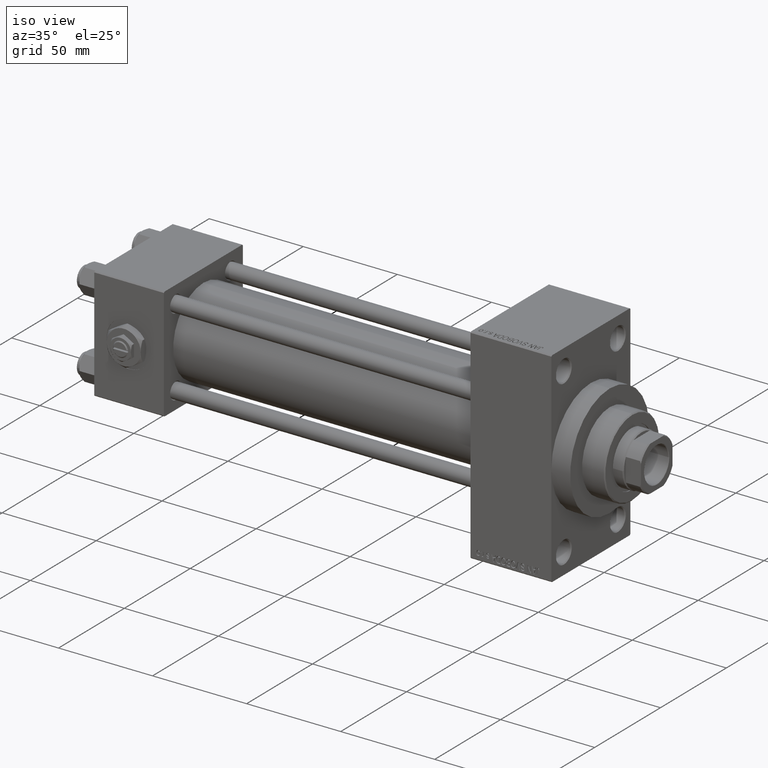
[diagram: clean part render]
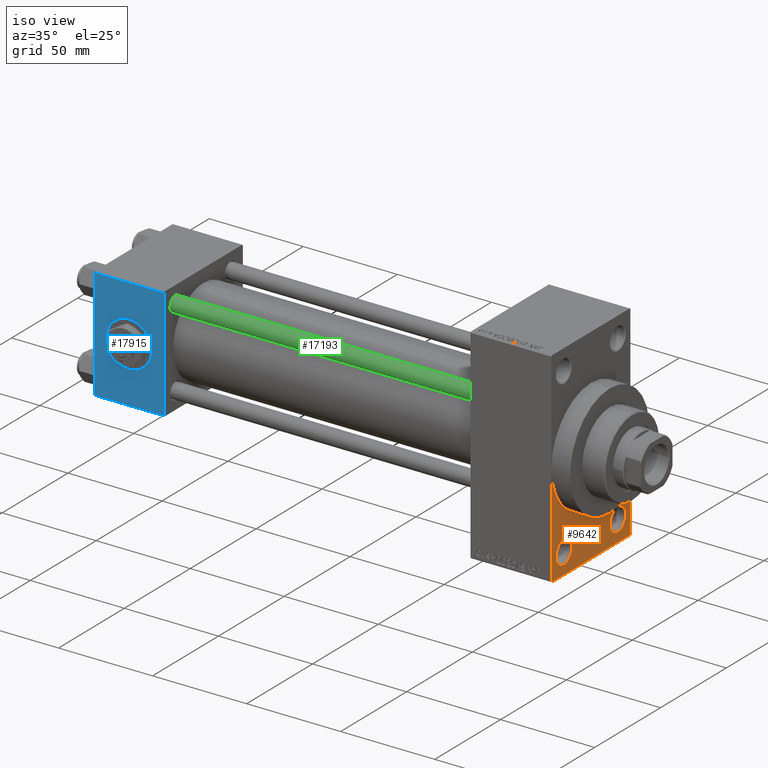
[diagram: same view with three faces highlighted in distinct colors, each labeled with its STEP entity id]
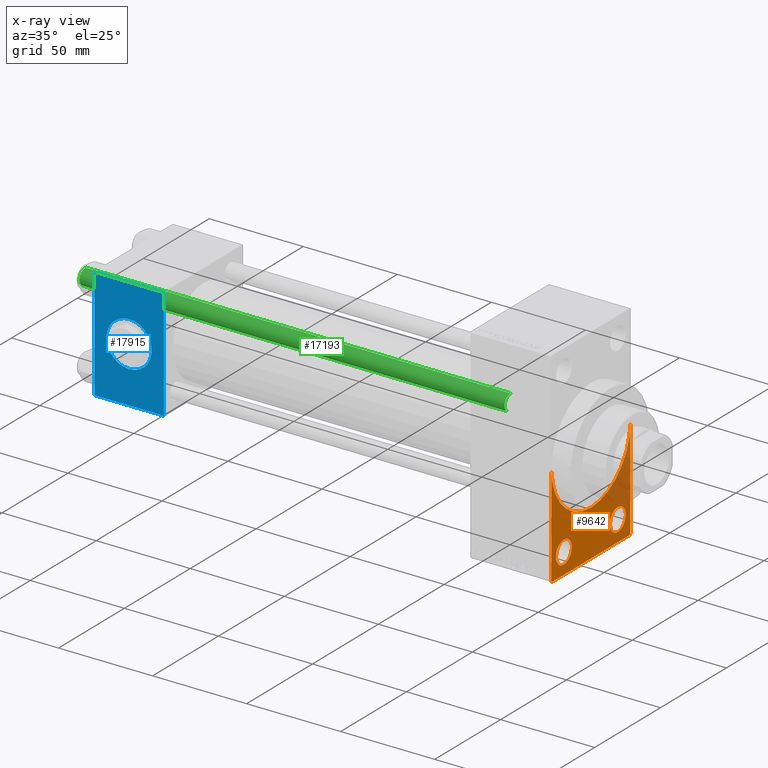
[diagram: x-ray of the same camera — body ghosted, the three highlighted faces saturated]
A machine part, iso view with three faces highlighted in distinct colors.
The next image is the same camera in x-ray (body ghosted, the three faces saturated) — at least one of them is partly hidden behind the body in this view.
Their STEP definitions:

[orange] entity #9642 — the highlighted planar face has unit normal (-1, 0, 0).
#1187 = CIRCLE ( 'NONE', #41303, 5.999999999999977796 ) ;
#1642 = CIRCLE ( 'NONE', #46474, 30.00000000000000000 ) ;
#1776 = VECTOR ( 'NONE', #24189, 1000.000000000000000 ) ;
#2080 = CARTESIAN_POINT ( 'NONE',  ( 243.0000000000000000, 20.50000000000000000, -49.49999999999997158 ) ) ;
#2520 = CARTESIAN_POINT ( 'NONE',  ( 243.0000000000000000, -29.50000000000002842, -54.50000000000000000 ) ) ;
#3011 = DIRECTION ( 'NONE',  ( 0.000000000000000000, 0.000000000000000000, -1.000000000000000000 ) ) ;
#3272 = ORIENTED_EDGE ( 'NONE', *, *, #37664, .T. ) ;
#4321 = DIRECTION ( 'NONE',  ( -1.000000000000000000, 0.000000000000000000, -0.000000000000000000 ) ) ;
#4845 = DIRECTION ( 'NONE',  ( 0.000000000000000000, -1.000000000000000000, -1.156482317317871478E-16 ) ) ;
#6890 = PLANE ( 'NONE',  #45797 ) ;
#7475 = CIRCLE ( 'NONE', #9070, 5.999999999999977796 ) ;
#7499 = CARTESIAN_POINT ( 'NONE',  ( 243.0000000000000000, 20.50000000000000000, -43.50000000000000000 ) ) ;
#8894 = CARTESIAN_POINT ( 'NONE',  ( 243.0000000000000000, -30.00000000000000000, 54.50000000000000000 ) ) ;
#9070 = AXIS2_PLACEMENT_3D ( 'NONE', #43183, #20024, #35544 ) ;
#9642 = ADVANCED_FACE ( 'NONE', ( #29566, #44598, #25625 ), #6890, .F. ) ;
#10213 = VERTEX_POINT ( 'NONE', #42944 ) ;
#10250 = EDGE_CURVE ( 'NONE', #10213, #30530, #26950, .T. ) ;
#10394 = VERTEX_POINT ( 'NONE', #40450 ) ;
#10604 = DIRECTION ( 'NONE',  ( 0.000000000000000000, 0.7071067811865352493, -0.7071067811865597852 ) ) ;
#10620 = DIRECTION ( 'NONE',  ( 1.000000000000000000, 0.000000000000000000, 0.000000000000000000 ) ) ;
#11388 = VECTOR ( 'NONE', #4845, 1000.000000000000000 ) ;
#12657 = DIRECTION ( 'NONE',  ( 0.000000000000000000, 0.000000000000000000, -1.000000000000000000 ) ) ;
#13057 = ORIENTED_EDGE ( 'NONE', *, *, #33371, .T. ) ;
#13114 = DIRECTION ( 'NONE',  ( 0.000000000000000000, 0.000000000000000000, -1.000000000000000000 ) ) ;
#13597 = DIRECTION ( 'NONE',  ( 1.000000000000000000, 0.000000000000000000, 0.000000000000000000 ) ) ;
#14459 = CIRCLE ( 'NONE', #39660, 5.999999999999977796 ) ;
#14538 = EDGE_CURVE ( 'NONE', #30530, #25422, #28179, .T. ) ;
#14823 = ORIENTED_EDGE ( 'NONE', *, *, #25719, .T. ) ;
#15262 = CARTESIAN_POINT ( 'NONE',  ( 243.0000000000000000, -20.50000000000000000, -43.50000000000000000 ) ) ;
#15311 = EDGE_CURVE ( 'NONE', #42953, #31707, #45726, .T. ) ;
#15885 = CARTESIAN_POINT ( 'NONE',  ( 243.0000000000000000, 29.49999999999996803, -54.49999999999999289 ) ) ;
#16158 = CARTESIAN_POINT ( 'NONE',  ( 243.0000000000000000, 29.99999999999999645, -54.49999999999999289 ) ) ;
#16190 = ORIENTED_EDGE ( 'NONE', *, *, #16194, .T. ) ;
#16194 = EDGE_CURVE ( 'NONE', #46316, #39956, #1187, .T. ) ;
#17363 = CARTESIAN_POINT ( 'NONE',  ( 243.0000000000000000, 20.50000000000000000, -43.50000000000000000 ) ) ;
#17772 = DIRECTION ( 'NONE',  ( -1.000000000000000000, 0.000000000000000000, -0.000000000000000000 ) ) ;
#18195 = ORIENTED_EDGE ( 'NONE', *, *, #23545, .F. ) ;
#19513 = LINE ( 'NONE', #23943, #1776 ) ;
#19622 = ORIENTED_EDGE ( 'NONE', *, *, #38752, .T. ) ;
#20024 = DIRECTION ( 'NONE',  ( -1.000000000000000000, 0.000000000000000000, -0.000000000000000000 ) ) ;
#21905 = CARTESIAN_POINT ( 'NONE',  ( 243.0000000000000000, 0.000000000000000000, 0.000000000000000000 ) ) ;
#22414 = CIRCLE ( 'NONE', #28738, 5.999999999999977796 ) ;
#23545 = EDGE_CURVE ( 'NONE', #25664, #10213, #1642, .T. ) ;
#23683 = EDGE_LOOP ( 'NONE', ( #16190, #19622 ) ) ;
#23921 = DIRECTION ( 'NONE',  ( 0.000000000000000000, 0.000000000000000000, -1.000000000000000000 ) ) ;
#23943 = CARTESIAN_POINT ( 'NONE',  ( 243.0000000000000000, 29.99999999999999645, -53.99999999999999289 ) ) ;
#24189 = DIRECTION ( 'NONE',  ( -0.000000000000000000, 0.7071067811865672237, 0.7071067811865279218 ) ) ;
#24776 = ORIENTED_EDGE ( 'NONE', *, *, #15311, .F. ) ;
#24960 = ORIENTED_EDGE ( 'NONE', *, *, #14538, .F. ) ;
#24963 = CARTESIAN_POINT ( 'NONE',  ( 243.0000000000000000, 29.99999999999999645, 54.49999999999999289 ) ) ;
#25422 = VERTEX_POINT ( 'NONE', #32911 ) ;
#25625 = FACE_OUTER_BOUND ( 'NONE', #29290, .T. ) ;
#25664 = VERTEX_POINT ( 'NONE', #36731 ) ;
#25719 = EDGE_CURVE ( 'NONE', #34623, #31707, #39950, .T. ) ;
#26784 = CARTESIAN_POINT ( 'NONE',  ( 243.0000000000000000, -30.00000000000000000, -54.00000000000001421 ) ) ;
#26950 = CIRCLE ( 'NONE', #43480, 30.00000000000000000 ) ;
#26993 = EDGE_LOOP ( 'NONE', ( #38519, #3272 ) ) ;
#27087 = DIRECTION ( 'NONE',  ( -1.000000000000000000, 0.000000000000000000, -0.000000000000000000 ) ) ;
#28179 = LINE ( 'NONE', #24963, #36499 ) ;
#28738 = AXIS2_PLACEMENT_3D ( 'NONE', #15262, #27087, #34478 ) ;
#29290 = EDGE_LOOP ( 'NONE', ( #13057, #14823, #24776, #38620, #24960, #32102, #18195 ) ) ;
#29566 = FACE_BOUND ( 'NONE', #26993, .T. ) ;
#30530 = VERTEX_POINT ( 'NONE', #45396 ) ;
#30711 = EDGE_CURVE ( 'NONE', #42953, #25422, #19513, .T. ) ;
#31707 = VERTEX_POINT ( 'NONE', #31833 ) ;
#31833 = CARTESIAN_POINT ( 'NONE',  ( 243.0000000000000000, -29.50000000000002842, -54.50000000000000000 ) ) ;
#32102 = ORIENTED_EDGE ( 'NONE', *, *, #10250, .F. ) ;
#32394 = DIRECTION ( 'NONE',  ( 0.000000000000000000, 0.000000000000000000, 1.000000000000000000 ) ) ;
#32911 = CARTESIAN_POINT ( 'NONE',  ( 243.0000000000000000, 29.99999999999999645, -53.99999999999999289 ) ) ;
#33371 = EDGE_CURVE ( 'NONE', #25664, #34623, #37492, .T. ) ;
#34095 = VERTEX_POINT ( 'NONE', #35266 ) ;
#34478 = DIRECTION ( 'NONE',  ( 0.000000000000000000, 0.000000000000000000, 1.000000000000000000 ) ) ;
#34623 = VERTEX_POINT ( 'NONE', #26784 ) ;
#35266 = CARTESIAN_POINT ( 'NONE',  ( 243.0000000000000000, -20.50000000000000000, -49.49999999999997158 ) ) ;
#35544 = DIRECTION ( 'NONE',  ( 0.000000000000000000, 0.000000000000000000, 1.000000000000000000 ) ) ;
#35565 = CARTESIAN_POINT ( 'NONE',  ( 243.0000000000000000, 20.50000000000000000, -37.50000000000002132 ) ) ;
#36023 = CARTESIAN_POINT ( 'NONE',  ( 243.0000000000000000, 0.000000000000000000, 0.000000000000000000 ) ) ;
#36492 = DIRECTION ( 'NONE',  ( -0.000000000000000000, 0.000000000000000000, 1.000000000000000000 ) ) ;
#36499 = VECTOR ( 'NONE', #12657, 1000.000000000000000 ) ;
#36731 = CARTESIAN_POINT ( 'NONE',  ( 243.0000000000000000, -30.00000000000000000, 0.000000000000000000 ) ) ;
#37492 = LINE ( 'NONE', #8894, #47481 ) ;
#37509 = EDGE_CURVE ( 'NONE', #34095, #10394, #22414, .T. ) ;
#37664 = EDGE_CURVE ( 'NONE', #10394, #34095, #7475, .T. ) ;
#38519 = ORIENTED_EDGE ( 'NONE', *, *, #37509, .T. ) ;
#38620 = ORIENTED_EDGE ( 'NONE', *, *, #30711, .T. ) ;
#38752 = EDGE_CURVE ( 'NONE', #39956, #46316, #14459, .T. ) ;
#39660 = AXIS2_PLACEMENT_3D ( 'NONE', #17363, #46952, #32394 ) ;
#39950 = LINE ( 'NONE', #2520, #43297 ) ;
#39956 = VERTEX_POINT ( 'NONE', #35565 ) ;
#40213 = CARTESIAN_POINT ( 'NONE',  ( 243.0000000000000000, 0.000000000000000000, 0.000000000000000000 ) ) ;
#40450 = CARTESIAN_POINT ( 'NONE',  ( 243.0000000000000000, -20.50000000000000000, -37.50000000000002132 ) ) ;
#41303 = AXIS2_PLACEMENT_3D ( 'NONE', #7499, #4321, #41517 ) ;
#41517 = DIRECTION ( 'NONE',  ( 0.000000000000000000, 0.000000000000000000, 1.000000000000000000 ) ) ;
#42944 = CARTESIAN_POINT ( 'NONE',  ( 243.0000000000000000, 3.673940397442059178E-15, -30.00000000000000000 ) ) ;
#42953 = VERTEX_POINT ( 'NONE', #15885 ) ;
#43183 = CARTESIAN_POINT ( 'NONE',  ( 243.0000000000000000, -20.50000000000000000, -43.50000000000000000 ) ) ;
#43297 = VECTOR ( 'NONE', #10604, 1000.000000000000000 ) ;
#43480 = AXIS2_PLACEMENT_3D ( 'NONE', #36023, #13597, #13114 ) ;
#44598 = FACE_BOUND ( 'NONE', #23683, .T. ) ;
#45396 = CARTESIAN_POINT ( 'NONE',  ( 243.0000000000000000, 30.00000000000000000, 0.000000000000000000 ) ) ;
#45726 = LINE ( 'NONE', #16158, #11388 ) ;
#45797 = AXIS2_PLACEMENT_3D ( 'NONE', #21905, #17772, #36492 ) ;
#46316 = VERTEX_POINT ( 'NONE', #2080 ) ;
#46474 = AXIS2_PLACEMENT_3D ( 'NONE', #40213, #10620, #3011 ) ;
#46952 = DIRECTION ( 'NONE',  ( -1.000000000000000000, 0.000000000000000000, -0.000000000000000000 ) ) ;
#47481 = VECTOR ( 'NONE', #23921, 1000.000000000000000 ) ;

[blue] entity #17915 — the highlighted planar face has unit normal (0, 1, 0).
#1523 = CARTESIAN_POINT ( 'NONE',  ( 37.00000000000000000, -30.00000000000000000, -29.50000000000001776 ) ) ;
#2731 = CARTESIAN_POINT ( 'NONE',  ( 18.50000000000000000, -30.00000000000000000, 0.000000000000000000 ) ) ;
#2765 = ORIENTED_EDGE ( 'NONE', *, *, #9865, .F. ) ;
#2948 = EDGE_LOOP ( 'NONE', ( #15471, #11332 ) ) ;
#3786 = LINE ( 'NONE', #33828, #24814 ) ;
#4745 = VERTEX_POINT ( 'NONE', #1523 ) ;
#4814 = EDGE_CURVE ( 'NONE', #13123, #23128, #5641, .T. ) ;
#5536 = EDGE_CURVE ( 'NONE', #45277, #39382, #38724, .T. ) ;
#5641 = CIRCLE ( 'NONE', #41057, 12.00000000000000178 ) ;
#5672 = VECTOR ( 'NONE', #48502, 1000.000000000000000 ) ;
#6885 = DIRECTION ( 'NONE',  ( 0.000000000000000000, -1.000000000000000000, -8.673617379884036705E-17 ) ) ;
#8712 = EDGE_CURVE ( 'NONE', #39382, #4745, #45100, .T. ) ;
#9064 = CARTESIAN_POINT ( 'NONE',  ( 18.50000000000000000, -30.00000000000000000, -12.00000000000000178 ) ) ;
#9865 = EDGE_CURVE ( 'NONE', #34831, #4745, #30016, .T. ) ;
#11332 = ORIENTED_EDGE ( 'NONE', *, *, #4814, .F. ) ;
#12644 = CARTESIAN_POINT ( 'NONE',  ( 18.50000000000000000, -30.00000000000000000, 0.000000000000000000 ) ) ;
#12982 = FACE_BOUND ( 'NONE', #2948, .T. ) ;
#13123 = VERTEX_POINT ( 'NONE', #26285 ) ;
#15328 = CIRCLE ( 'NONE', #37346, 12.00000000000000178 ) ;
#15471 = ORIENTED_EDGE ( 'NONE', *, *, #36232, .F. ) ;
#15522 = CARTESIAN_POINT ( 'NONE',  ( 37.00000000000000000, -30.00000000000000000, -29.50000000000001776 ) ) ;
#17609 = ORIENTED_EDGE ( 'NONE', *, *, #8712, .T. ) ;
#17915 = ADVANCED_FACE ( 'NONE', ( #12982, #28025 ), #43050, .F. ) ;
#20232 = DIRECTION ( 'NONE',  ( 0.000000000000000000, 0.000000000000000000, -1.000000000000000000 ) ) ;
#23128 = VERTEX_POINT ( 'NONE', #9064 ) ;
#23437 = EDGE_LOOP ( 'NONE', ( #46586, #17609, #2765, #34718 ) ) ;
#24310 = CARTESIAN_POINT ( 'NONE',  ( 37.00000000000000000, -30.00000000000000000, 29.99999999999999289 ) ) ;
#24448 = DIRECTION ( 'NONE',  ( -0.000000000000000000, 1.000000000000000000, 0.000000000000000000 ) ) ;
#24814 = VECTOR ( 'NONE', #34075, 1000.000000000000000 ) ;
#26285 = CARTESIAN_POINT ( 'NONE',  ( 18.50000000000000000, -30.00000000000000000, 12.00000000000000178 ) ) ;
#28025 = FACE_OUTER_BOUND ( 'NONE', #23437, .T. ) ;
#28167 = DIRECTION ( 'NONE',  ( 0.000000000000000000, -1.000000000000000000, -8.673617379884036705E-17 ) ) ;
#28214 = AXIS2_PLACEMENT_3D ( 'NONE', #24310, #24448, #39239 ) ;
#30016 = LINE ( 'NONE', #48743, #5672 ) ;
#30553 = DIRECTION ( 'NONE',  ( 1.000000000000000000, 0.000000000000000000, 0.000000000000000000 ) ) ;
#31332 = CARTESIAN_POINT ( 'NONE',  ( 0.000000000000000000, -30.00000000000000000, 29.99999999999999289 ) ) ;
#31498 = CARTESIAN_POINT ( 'NONE',  ( 0.000000000000000000, -30.00000000000000000, -29.50000000000001776 ) ) ;
#31792 = CARTESIAN_POINT ( 'NONE',  ( 0.000000000000000000, -30.00000000000000000, 29.49999999999999289 ) ) ;
#33828 = CARTESIAN_POINT ( 'NONE',  ( 37.00000000000000000, -30.00000000000000000, 29.49999999999999289 ) ) ;
#34075 = DIRECTION ( 'NONE',  ( -1.000000000000000000, 0.000000000000000000, 0.000000000000000000 ) ) ;
#34718 = ORIENTED_EDGE ( 'NONE', *, *, #41415, .T. ) ;
#34831 = VERTEX_POINT ( 'NONE', #40568 ) ;
#36232 = EDGE_CURVE ( 'NONE', #23128, #13123, #15328, .T. ) ;
#37346 = AXIS2_PLACEMENT_3D ( 'NONE', #12644, #28167, #47122 ) ;
#38724 = LINE ( 'NONE', #31332, #47351 ) ;
#39239 = DIRECTION ( 'NONE',  ( 0.000000000000000000, -0.000000000000000000, 1.000000000000000000 ) ) ;
#39382 = VERTEX_POINT ( 'NONE', #31498 ) ;
#40568 = CARTESIAN_POINT ( 'NONE',  ( 37.00000000000000000, -30.00000000000000000, 29.49999999999999289 ) ) ;
#40890 = DIRECTION ( 'NONE',  ( 0.000000000000000000, 0.000000000000000000, -1.000000000000000000 ) ) ;
#41057 = AXIS2_PLACEMENT_3D ( 'NONE', #2731, #6885, #40890 ) ;
#41415 = EDGE_CURVE ( 'NONE', #34831, #45277, #3786, .T. ) ;
#43050 = PLANE ( 'NONE',  #28214 ) ;
#45100 = LINE ( 'NONE', #15522, #46546 ) ;
#45277 = VERTEX_POINT ( 'NONE', #31792 ) ;
#46546 = VECTOR ( 'NONE', #30553, 1000.000000000000000 ) ;
#46586 = ORIENTED_EDGE ( 'NONE', *, *, #5536, .T. ) ;
#47122 = DIRECTION ( 'NONE',  ( 0.000000000000000000, 0.000000000000000000, -1.000000000000000000 ) ) ;
#47351 = VECTOR ( 'NONE', #20232, 1000.000000000000000 ) ;
#48502 = DIRECTION ( 'NONE',  ( 0.000000000000000000, 0.000000000000000000, -1.000000000000000000 ) ) ;
#48743 = CARTESIAN_POINT ( 'NONE',  ( 37.00000000000000000, -30.00000000000000000, 29.99999999999999289 ) ) ;

[green] entity #17193 — the highlighted cylindrical surface (edge-blend (fillet) strip) has radius 4 mm, axis along (1, 0, 0).
#1009 = VECTOR ( 'NONE', #31068, 1000.000000000000000 ) ;
#2087 = EDGE_CURVE ( 'NONE', #39186, #6755, #31488, .T. ) ;
#3824 = ORIENTED_EDGE ( 'NONE', *, *, #2087, .T. ) ;
#4260 = DIRECTION ( 'NONE',  ( 1.000000000000000000, 0.000000000000000000, 0.000000000000000000 ) ) ;
#4270 = DIRECTION ( 'NONE',  ( -1.000000000000000000, 0.000000000000000000, 0.000000000000000000 ) ) ;
#5132 = AXIS2_PLACEMENT_3D ( 'NONE', #6593, #32473, #13496 ) ;
#6306 = CYLINDRICAL_SURFACE ( 'NONE', #20168, 4.000000000000000000 ) ;
#6593 = CARTESIAN_POINT ( 'NONE',  ( 0.000000000000000000, 0.000000000000000000, 0.5000000000002224887 ) ) ;
#6755 = VERTEX_POINT ( 'NONE', #48048 ) ;
#7934 = DIRECTION ( 'NONE',  ( -0.000000000000000000, -0.000000000000000000, -1.000000000000000000 ) ) ;
#9999 = FACE_OUTER_BOUND ( 'NONE', #29810, .T. ) ;
#10418 = EDGE_CURVE ( 'NONE', #31871, #32713, #11597, .T. ) ;
#11597 = LINE ( 'NONE', #45598, #1009 ) ;
#12289 = AXIS2_PLACEMENT_3D ( 'NONE', #46371, #23202, #4260 ) ;
#13496 = DIRECTION ( 'NONE',  ( 1.000000000000000000, 0.000000000000000000, 0.000000000000000000 ) ) ;
#16489 = EDGE_CURVE ( 'NONE', #31871, #39186, #46945, .T. ) ;
#17193 = ADVANCED_FACE ( 'NONE', ( #9999 ), #6306, .T. ) ;
#17234 = ORIENTED_EDGE ( 'NONE', *, *, #10418, .F. ) ;
#18454 = CARTESIAN_POINT ( 'NONE',  ( 4.000000000000000000, 4.898587196589411843E-16, 226.5000000000001421 ) ) ;
#20168 = AXIS2_PLACEMENT_3D ( 'NONE', #26190, #7934, #4270 ) ;
#23202 = DIRECTION ( 'NONE',  ( 0.000000000000000000, 0.000000000000000000, -1.000000000000000000 ) ) ;
#23670 = CARTESIAN_POINT ( 'NONE',  ( -4.000000000000000000, 0.000000000000000000, 0.5000000000002224887 ) ) ;
#24351 = ORIENTED_EDGE ( 'NONE', *, *, #45760, .T. ) ;
#25997 = VECTOR ( 'NONE', #43303, 1000.000000000000000 ) ;
#26190 = CARTESIAN_POINT ( 'NONE',  ( 0.000000000000000000, 0.000000000000000000, 227.0000000000000000 ) ) ;
#27547 = CARTESIAN_POINT ( 'NONE',  ( 4.000000000000000000, 4.898587196589411843E-16, 227.0000000000000000 ) ) ;
#27961 = CIRCLE ( 'NONE', #5132, 4.000000000000000000 ) ;
#29810 = EDGE_LOOP ( 'NONE', ( #42165, #3824, #24351, #17234 ) ) ;
#31068 = DIRECTION ( 'NONE',  ( -0.000000000000000000, -0.000000000000000000, -1.000000000000000000 ) ) ;
#31488 = LINE ( 'NONE', #27547, #25997 ) ;
#31871 = VERTEX_POINT ( 'NONE', #40434 ) ;
#32473 = DIRECTION ( 'NONE',  ( -0.000000000000000000, -0.000000000000000000, 1.000000000000000000 ) ) ;
#32713 = VERTEX_POINT ( 'NONE', #23670 ) ;
#39186 = VERTEX_POINT ( 'NONE', #18454 ) ;
#40434 = CARTESIAN_POINT ( 'NONE',  ( -4.000000000000000000, 0.000000000000000000, 226.5000000000001421 ) ) ;
#42165 = ORIENTED_EDGE ( 'NONE', *, *, #16489, .T. ) ;
#43303 = DIRECTION ( 'NONE',  ( -0.000000000000000000, -0.000000000000000000, -1.000000000000000000 ) ) ;
#45598 = CARTESIAN_POINT ( 'NONE',  ( -4.000000000000000000, 0.000000000000000000, 227.0000000000000000 ) ) ;
#45760 = EDGE_CURVE ( 'NONE', #6755, #32713, #27961, .T. ) ;
#46371 = CARTESIAN_POINT ( 'NONE',  ( 0.000000000000000000, 0.000000000000000000, 226.5000000000001421 ) ) ;
#46945 = CIRCLE ( 'NONE', #12289, 4.000000000000000000 ) ;
#48048 = CARTESIAN_POINT ( 'NONE',  ( 4.000000000000000000, 4.898587196589411843E-16, 0.5000000000002224887 ) ) ;